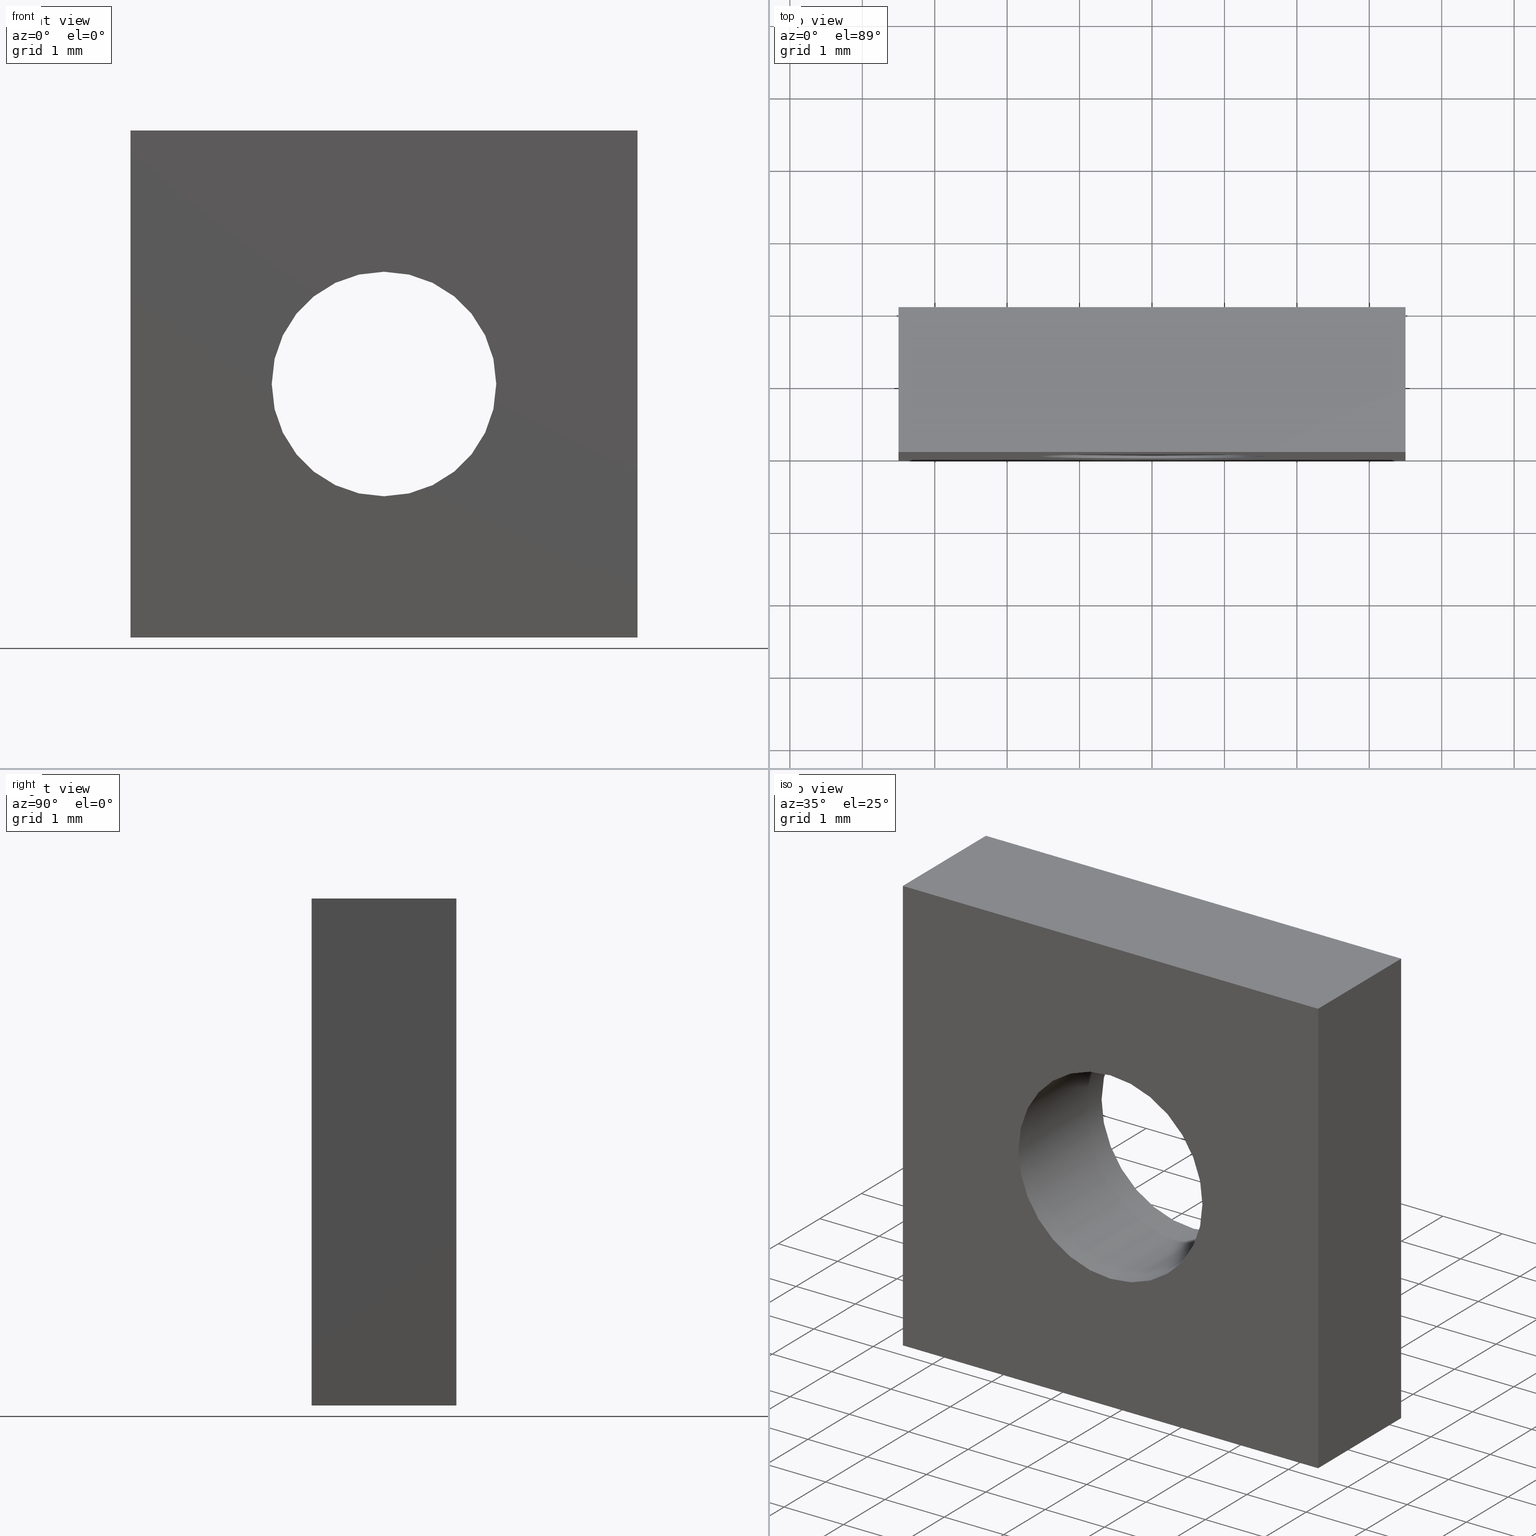
[diagram: canonical four-view strip — front | top / right | iso, engineering-drawing reading convention]
A machine part, canonical four-view strip (front | top / right | iso — engineering-drawing reading convention). The complete STEP part file that produces these views, byte-faithful:
ISO-10303-21;
HEADER;
FILE_DESCRIPTION (( 'STEP AP214' ),
    '1' );
FILE_NAME ('CTN009263.STEP',
    '2016-07-15T02:11:23',
    ( '' ),
    ( '' ),
    'SwSTEP 2.0',
    'SolidWorks 2016',
    '' );
FILE_SCHEMA (( 'AUTOMOTIVE_DESIGN' ));
ENDSEC;

DATA;
#1 = STYLED_ITEM ( 'NONE', ( #291 ), #466 ) ;
#2 = CARTESIAN_POINT ( 'NONE',  ( -3.499999999999999600, 2.000000000000000000, -3.500000000000000000 ) ) ;
#3 = STYLED_ITEM ( 'NONE', ( #206 ), #300 ) ;
#4 = FILL_AREA_STYLE_COLOUR ( '', #452 ) ;
#5 =( NAMED_UNIT ( * ) SI_UNIT ( $, .STERADIAN. ) SOLID_ANGLE_UNIT ( ) );
#6 = EDGE_CURVE ( 'NONE', #362, #265, #137, .T. ) ;
#7 = VECTOR ( 'NONE', #401, 1000.000000000000000 ) ;
#8 = SURFACE_STYLE_FILL_AREA ( #145 ) ;
#9 = VECTOR ( 'NONE', #182, 1000.000000000000000 ) ;
#10 = EDGE_CURVE ( 'NONE', #265, #474, #270, .T. ) ;
#11 = PRESENTATION_LAYER_ASSIGNMENT (  '', '', ( #494 ) ) ;
#12 = ORIENTED_EDGE ( 'NONE', *, *, #160, .F. ) ;
#13 = ORIENTED_EDGE ( 'NONE', *, *, #296, .T. ) ;
#14 = ORIENTED_EDGE ( 'NONE', *, *, #6, .T. ) ;
#15 =( LENGTH_UNIT ( ) NAMED_UNIT ( * ) SI_UNIT ( .MILLI., .METRE. ) );
#16 = VECTOR ( 'NONE', #155, 1000.000000000000000 ) ;
#17 = FILL_AREA_STYLE ('',( #523 ) ) ;
#18 = VECTOR ( 'NONE', #348, 1000.000000000000000 ) ;
#19 =( LENGTH_UNIT ( ) NAMED_UNIT ( * ) SI_UNIT ( .MILLI., .METRE. ) );
#20 = AXIS2_PLACEMENT_3D ( 'NONE', #238, #317, #280 ) ;
#21 = VECTOR ( 'NONE', #46, 1000.000000000000000 ) ;
#22 = COLOUR_RGB ( '',1.000000000000000000, 1.000000000000000000, 0.7529411764705882200 ) ;
#23 = CARTESIAN_POINT ( 'NONE',  ( 3.499999999999999600, 1.500000000000001600, -2.350000000000002300 ) ) ;
#24 = VERTEX_POINT ( 'NONE', #23 ) ;
#25 = AXIS2_PLACEMENT_3D ( 'NONE', #481, #233, #26 ) ;
#26 = DIRECTION ( 'NONE',  ( 1.000000000000000000, 0.0000000000000000000, -0.0000000000000000000 ) ) ;
#27 = VERTEX_POINT ( 'NONE', #140 ) ;
#28 = DIRECTION ( 'NONE',  ( 0.0000000000000000000, -0.0000000000000000000, 1.000000000000000000 ) ) ;
#29 = DIRECTION ( 'NONE',  ( -1.000000000000000000, 0.0000000000000000000, 6.195440985631455300E-017 ) ) ;
#30 = EDGE_CURVE ( 'NONE', #525, #68, #82, .T. ) ;
#31 =( NAMED_UNIT ( * ) PLANE_ANGLE_UNIT ( ) SI_UNIT ( $, .RADIAN. ) );
#32 = CARTESIAN_POINT ( 'NONE',  ( 3.499999999999999600, 1.500000000000001600, -2.650000000000002100 ) ) ;
#33 =( LENGTH_UNIT ( ) NAMED_UNIT ( * ) SI_UNIT ( .MILLI., .METRE. ) );
#34 = VERTEX_POINT ( 'NONE', #429 ) ;
#35 = FILL_AREA_STYLE_COLOUR ( '', #282 ) ;
#36 = LINE ( 'NONE', #408, #16 ) ;
#37 = CARTESIAN_POINT ( 'NONE',  ( -3.499999999999999100, 2.000000000000000000, 3.500000000000000900 ) ) ;
#38 = UNCERTAINTY_MEASURE_WITH_UNIT (LENGTH_MEASURE( 1.000000000000000100E-005 ), #305, 'distance_accuracy_value', 'NONE');
#39 = CIRCLE ( 'NONE', #369, 1.550000000000000000 ) ;
#40 = PRESENTATION_STYLE_ASSIGNMENT (( #398 ) ) ;
#41 = ORIENTED_EDGE ( 'NONE', *, *, #181, .F. ) ;
#42 = PLANE ( 'NONE',  #367 ) ;
#43 = ORIENTED_EDGE ( 'NONE', *, *, #409, .F. ) ;
#44 = ORIENTED_EDGE ( 'NONE', *, *, #188, .F. ) ;
#45 = MECHANICAL_DESIGN_GEOMETRIC_PRESENTATION_REPRESENTATION (  '', ( #494 ), #67 ) ;
#46 = DIRECTION ( 'NONE',  ( -0.0000000000000000000, 1.000000000000000000, -0.0000000000000000000 ) ) ;
#47 = SURFACE_STYLE_FILL_AREA ( #186 ) ;
#48 = VERTEX_POINT ( 'NONE', #258 ) ;
#49 = LINE ( 'NONE', #61, #18 ) ;
#50 = PRESENTATION_LAYER_ASSIGNMENT (  '', '', ( #1 ) ) ;
#51 = ORIENTED_EDGE ( 'NONE', *, *, #176, .T. ) ;
#52 = CLOSED_SHELL ( 'NONE', ( #466, #59, #333, #134, #87, #253, #419, #300, #500 ) ) ;
#53 = PRESENTATION_LAYER_ASSIGNMENT (  '', '', ( #3 ) ) ;
#54 = ORIENTED_EDGE ( 'NONE', *, *, #463, .F. ) ;
#55 = VECTOR ( 'NONE', #426, 1000.000000000000000 ) ;
#56 = FACE_OUTER_BOUND ( 'NONE', #208, .T. ) ;
#57 = EDGE_CURVE ( 'NONE', #68, #129, #310, .T. ) ;
#58 = EDGE_CURVE ( 'NONE', #402, #525, #380, .T. ) ;
#59 = ADVANCED_FACE ( 'NONE', ( #152 ), #276, .F. ) ;
#60 = ORIENTED_EDGE ( 'NONE', *, *, #10, .T. ) ;
#61 = CARTESIAN_POINT ( 'NONE',  ( 3.499999999999999600, 0.8500000000000015300, -2.650000000000002100 ) ) ;
#62 = VERTEX_POINT ( 'NONE', #32 ) ;
#63 = DIRECTION ( 'NONE',  ( 0.0000000000000000000, 1.000000000000000000, -0.0000000000000000000 ) ) ;
#64 = CARTESIAN_POINT ( 'NONE',  ( 0.0000000000000000000, 0.0000000000000000000, 0.0000000000000000000 ) ) ;
#65 =( NAMED_UNIT ( * ) SI_UNIT ( $, .STERADIAN. ) SOLID_ANGLE_UNIT ( ) );
#66 = CARTESIAN_POINT ( 'NONE',  ( 3.500000000000000000, 0.0000000000000000000, 3.500000000000000000 ) ) ;
#67 =( GEOMETRIC_REPRESENTATION_CONTEXT ( 3 ) GLOBAL_UNCERTAINTY_ASSIGNED_CONTEXT ( ( #214 ) ) GLOBAL_UNIT_ASSIGNED_CONTEXT ( ( #19, #218, #517 ) ) REPRESENTATION_CONTEXT ( 'NONE', 'WORKASPACE' ) );
#68 = VERTEX_POINT ( 'NONE', #483 ) ;
#69 =( NAMED_UNIT ( * ) PLANE_ANGLE_UNIT ( ) SI_UNIT ( $, .RADIAN. ) );
#70 = CARTESIAN_POINT ( 'NONE',  ( 3.499999999999999600, 0.8500000000000015300, -2.350000000000000500 ) ) ;
#71 = VECTOR ( 'NONE', #407, 1000.000000000000000 ) ;
#72 = SURFACE_SIDE_STYLE ('',( #272 ) ) ;
#73 = DIRECTION ( 'NONE',  ( -1.000000000000000000, 0.0000000000000000000, 1.239088197126291300E-016 ) ) ;
#74 = ORIENTED_EDGE ( 'NONE', *, *, #188, .T. ) ;
#75 = FACE_OUTER_BOUND ( 'NONE', #250, .T. ) ;
#76 = DIRECTION ( 'NONE',  ( -0.0000000000000000000, 1.000000000000000000, -0.0000000000000000000 ) ) ;
#77 = PRESENTATION_LAYER_ASSIGNMENT (  '', '', ( #499 ) ) ;
#78 = CARTESIAN_POINT ( 'NONE',  ( 3.499999999999999600, 1.150000000000001500, -2.650000000000002100 ) ) ;
#79 = VECTOR ( 'NONE', #180, 1000.000000000000000 ) ;
#80 = DIRECTION ( 'NONE',  ( 6.195440985631455300E-017, -0.0000000000000000000, 1.000000000000000000 ) ) ;
#81 = MECHANICAL_DESIGN_GEOMETRIC_PRESENTATION_REPRESENTATION (  '', ( #3 ), #98 ) ;
#82 = LINE ( 'NONE', #422, #319 ) ;
#83 = ORIENTED_EDGE ( 'NONE', *, *, #463, .T. ) ;
#84 = ORIENTED_EDGE ( 'NONE', *, *, #163, .T. ) ;
#85 = ORIENTED_EDGE ( 'NONE', *, *, #181, .T. ) ;
#86 = COLOUR_RGB ( '',1.000000000000000000, 0.5019607843137254800, 0.5019607843137254800 ) ;
#87 = ADVANCED_FACE ( 'NONE', ( #216, #115 ), #394, .F. ) ;
#88 = ORIENTED_EDGE ( 'NONE', *, *, #6, .F. ) ;
#89 = VERTEX_POINT ( 'NONE', #359 ) ;
#90 = PRODUCT_DEFINITION_SHAPE ( 'NONE', 'NONE',  #241 ) ;
#91 = SURFACE_STYLE_USAGE ( .BOTH. , #508 ) ;
#92 = MECHANICAL_DESIGN_GEOMETRIC_PRESENTATION_REPRESENTATION (  '', ( #499 ), #126 ) ;
#93 = FILL_AREA_STYLE_COLOUR ( '', #301 ) ;
#94 = FACE_BOUND ( 'NONE', #482, .T. ) ;
#95 =( NAMED_UNIT ( * ) PLANE_ANGLE_UNIT ( ) SI_UNIT ( $, .RADIAN. ) );
#96 = CARTESIAN_POINT ( 'NONE',  ( 3.499999999999999600, 1.150000000000001500, -2.000000000000000000 ) ) ;
#97 = CARTESIAN_POINT ( 'NONE',  ( 0.0000000000000000000, 2.000000000000000000, 0.0000000000000000000 ) ) ;
#98 =( GEOMETRIC_REPRESENTATION_CONTEXT ( 3 ) GLOBAL_UNCERTAINTY_ASSIGNED_CONTEXT ( ( #469 ) ) GLOBAL_UNIT_ASSIGNED_CONTEXT ( ( #100, #31, #440 ) ) REPRESENTATION_CONTEXT ( 'NONE', 'WORKASPACE' ) );
#99 = EDGE_CURVE ( 'NONE', #377, #458, #503, .T. ) ;
#100 =( LENGTH_UNIT ( ) NAMED_UNIT ( * ) SI_UNIT ( .MILLI., .METRE. ) );
#101 = SURFACE_STYLE_USAGE ( .BOTH. , #356 ) ;
#102 = MECHANICAL_DESIGN_GEOMETRIC_PRESENTATION_REPRESENTATION (  '', ( #1 ), #133 ) ;
#103 = CARTESIAN_POINT ( 'NONE',  ( -3.499999999999999600, 2.000000000000000000, -3.500000000000000000 ) ) ;
#104 =( LENGTH_UNIT ( ) NAMED_UNIT ( * ) SI_UNIT ( .MILLI., .METRE. ) );
#105 = EDGE_CURVE ( 'NONE', #525, #265, #390, .T. ) ;
#106 = DIRECTION ( 'NONE',  ( -0.0000000000000000000, 1.000000000000000000, 0.0000000000000000000 ) ) ;
#107 = CARTESIAN_POINT ( 'NONE',  ( -3.499999999999999600, 2.000000000000000000, -3.500000000000000000 ) ) ;
#108 = CARTESIAN_POINT ( 'NONE',  ( 3.500000000000000000, 2.000000000000000000, 3.500000000000000000 ) ) ;
#109 = CARTESIAN_POINT ( 'NONE',  ( -3.499999999999999600, 2.000000000000000000, -3.500000000000000000 ) ) ;
#110 = DIRECTION ( 'NONE',  ( -0.0000000000000000000, 1.000000000000000000, 0.0000000000000000000 ) ) ;
#111 = ORIENTED_EDGE ( 'NONE', *, *, #430, .F. ) ;
#112 = ORIENTED_EDGE ( 'NONE', *, *, #269, .T. ) ;
#113 = CARTESIAN_POINT ( 'NONE',  ( 0.0000000000000000000, -7.999900000000001100, 0.0000000000000000000 ) ) ;
#114 = LINE ( 'NONE', #109, #321 ) ;
#115 = FACE_OUTER_BOUND ( 'NONE', #266, .T. ) ;
#116 = DIRECTION ( 'NONE',  ( -3.838348900644204700E-031, -1.000000000000000000, -6.195440985631453300E-015 ) ) ;
#117 =( NAMED_UNIT ( * ) PLANE_ANGLE_UNIT ( ) SI_UNIT ( $, .RADIAN. ) );
#118 = FACE_OUTER_BOUND ( 'NONE', #328, .T. ) ;
#119 = ORIENTED_EDGE ( 'NONE', *, *, #330, .T. ) ;
#120 = STYLED_ITEM ( 'NONE', ( #192 ), #134 ) ;
#121 = CARTESIAN_POINT ( 'NONE',  ( 1.898202538678397500E-016, 0.0000000000000000000, -1.550000000000000000 ) ) ;
#122 = PRESENTATION_STYLE_ASSIGNMENT (( #299 ) ) ;
#123 = VERTEX_POINT ( 'NONE', #438 ) ;
#124 = UNCERTAINTY_MEASURE_WITH_UNIT (LENGTH_MEASURE( 1.000000000000000100E-005 ), #220, 'distance_accuracy_value', 'NONE');
#125 = LINE ( 'NONE', #78, #337 ) ;
#126 =( GEOMETRIC_REPRESENTATION_CONTEXT ( 3 ) GLOBAL_UNCERTAINTY_ASSIGNED_CONTEXT ( ( #528 ) ) GLOBAL_UNIT_ASSIGNED_CONTEXT ( ( #347, #69, #194 ) ) REPRESENTATION_CONTEXT ( 'NONE', 'WORKASPACE' ) );
#127 = FACE_OUTER_BOUND ( 'NONE', #415, .T. ) ;
#128 = CYLINDRICAL_SURFACE ( 'NONE', #210, 1.550000000000000000 ) ;
#129 = VERTEX_POINT ( 'NONE', #479 ) ;
#130 = VERTEX_POINT ( 'NONE', #172 ) ;
#131 = ORIENTED_EDGE ( 'NONE', *, *, #105, .F. ) ;
#132 = EDGE_CURVE ( 'NONE', #458, #203, #286, .T. ) ;
#133 =( GEOMETRIC_REPRESENTATION_CONTEXT ( 3 ) GLOBAL_UNCERTAINTY_ASSIGNED_CONTEXT ( ( #254 ) ) GLOBAL_UNIT_ASSIGNED_CONTEXT ( ( #495, #287, #5 ) ) REPRESENTATION_CONTEXT ( 'NONE', 'WORKASPACE' ) );
#134 = ADVANCED_FACE ( 'NONE', ( #396 ), #392, .F. ) ;
#135 = ORIENTED_EDGE ( 'NONE', *, *, #212, .T. ) ;
#136 = FILL_AREA_STYLE ('',( #4 ) ) ;
#137 = LINE ( 'NONE', #178, #364 ) ;
#138 = CARTESIAN_POINT ( 'NONE',  ( 3.499999999999999600, 1.150000000000001500, -2.000000000000000000 ) ) ;
#139 = CIRCLE ( 'NONE', #341, 1.550000000000000000 ) ;
#140 = CARTESIAN_POINT ( 'NONE',  ( 3.499999999999999600, 1.150000000000001500, -2.650000000000002100 ) ) ;
#141 =( NAMED_UNIT ( * ) PLANE_ANGLE_UNIT ( ) SI_UNIT ( $, .RADIAN. ) );
#142 = ORIENTED_EDGE ( 'NONE', *, *, #485, .T. ) ;
#143 = AXIS2_PLACEMENT_3D ( 'NONE', #311, #262, #225 ) ;
#144 = DIRECTION ( 'NONE',  ( -0.0000000000000000000, 1.000000000000000000, 0.0000000000000000000 ) ) ;
#145 = FILL_AREA_STYLE ('',( #184 ) ) ;
#146 = FILL_AREA_STYLE ('',( #179 ) ) ;
#147 = CARTESIAN_POINT ( 'NONE',  ( 3.499999999999999600, 2.000000000000000000, -3.500000000000000000 ) ) ;
#148 = SURFACE_SIDE_STYLE ('',( #47 ) ) ;
#149 = FILL_AREA_STYLE ('',( #151 ) ) ;
#150 = DIRECTION ( 'NONE',  ( 0.0000000000000000000, 0.0000000000000000000, 1.000000000000000000 ) ) ;
#151 = FILL_AREA_STYLE_COLOUR ( '', #204 ) ;
#152 = FACE_OUTER_BOUND ( 'NONE', #386, .T. ) ;
#153 = LINE ( 'NONE', #103, #249 ) ;
#154 = DIRECTION ( 'NONE',  ( -0.0000000000000000000, 1.000000000000000000, 0.0000000000000000000 ) ) ;
#155 = DIRECTION ( 'NONE',  ( 0.0000000000000000000, -1.000000000000000000, 0.0000000000000000000 ) ) ;
#156 = ORIENTED_EDGE ( 'NONE', *, *, #334, .F. ) ;
#157 = ORIENTED_EDGE ( 'NONE', *, *, #99, .F. ) ;
#158 = DIRECTION ( 'NONE',  ( -0.0000000000000000000, 1.000000000000000000, -0.0000000000000000000 ) ) ;
#159 = STYLED_ITEM ( 'NONE', ( #289 ), #333 ) ;
#160 = EDGE_CURVE ( 'NONE', #24, #260, #375, .T. ) ;
#161 = PRESENTATION_LAYER_ASSIGNMENT (  '', '', ( #185 ) ) ;
#162 = COLOUR_RGB ( '',1.000000000000000000, 1.000000000000000000, 0.7529411764705882200 ) ;
#163 = EDGE_CURVE ( 'NONE', #123, #177, #257, .T. ) ;
#164 = ORIENTED_EDGE ( 'NONE', *, *, #245, .T. ) ;
#165 = ORIENTED_EDGE ( 'NONE', *, *, #353, .T. ) ;
#166 = VECTOR ( 'NONE', #519, 1000.000000000000000 ) ;
#167 = PRESENTATION_LAYER_ASSIGNMENT (  '', '', ( #120 ) ) ;
#168 = LINE ( 'NONE', #354, #395 ) ;
#169 = ORIENTED_EDGE ( 'NONE', *, *, #160, .T. ) ;
#170 = ORIENTED_EDGE ( 'NONE', *, *, #409, .T. ) ;
#171 = SURFACE_STYLE_FILL_AREA ( #457 ) ;
#172 = CARTESIAN_POINT ( 'NONE',  ( 0.0000000000000000000, 0.0000000000000000000, 1.550000000000000000 ) ) ;
#173 = DIRECTION ( 'NONE',  ( -0.0000000000000000000, -1.000000000000000000, -0.0000000000000000000 ) ) ;
#174 = ORIENTED_EDGE ( 'NONE', *, *, #412, .T. ) ;
#175 = UNCERTAINTY_MEASURE_WITH_UNIT (LENGTH_MEASURE( 1.000000000000000100E-005 ), #15, 'distance_accuracy_value', 'NONE');
#176 = EDGE_CURVE ( 'NONE', #129, #48, #153, .T. ) ;
#177 = VERTEX_POINT ( 'NONE', #520 ) ;
#178 = CARTESIAN_POINT ( 'NONE',  ( -3.499999999999999100, 0.0000000000000000000, 3.500000000000000900 ) ) ;
#179 = FILL_AREA_STYLE_COLOUR ( '', #344 ) ;
#180 = DIRECTION ( 'NONE',  ( -0.0000000000000000000, -1.000000000000000000, -0.0000000000000000000 ) ) ;
#181 = EDGE_CURVE ( 'NONE', #89, #34, #366, .T. ) ;
#182 = DIRECTION ( 'NONE',  ( 6.195440985631455300E-017, -0.0000000000000000000, 1.000000000000000000 ) ) ;
#183 = PRESENTATION_STYLE_ASSIGNMENT (( #371 ) ) ;
#184 = FILL_AREA_STYLE_COLOUR ( '', #425 ) ;
#185 = STYLED_ITEM ( 'NONE', ( #40 ), #500 ) ;
#186 = FILL_AREA_STYLE ('',( #230 ) ) ;
#187 = PLANE ( 'NONE',  #20 ) ;
#188 = EDGE_CURVE ( 'NONE', #488, #130, #139, .T. ) ;
#189 = FILL_AREA_STYLE ('',( #514 ) ) ;
#190 =( NAMED_UNIT ( * ) SI_UNIT ( $, .STERADIAN. ) SOLID_ANGLE_UNIT ( ) );
#191 = FILL_AREA_STYLE ('',( #487 ) ) ;
#192 = PRESENTATION_STYLE_ASSIGNMENT (( #511 ) ) ;
#193 = ORIENTED_EDGE ( 'NONE', *, *, #30, .F. ) ;
#194 =( NAMED_UNIT ( * ) SI_UNIT ( $, .STERADIAN. ) SOLID_ANGLE_UNIT ( ) );
#195 = CARTESIAN_POINT ( 'NONE',  ( 0.0000000000000000000, -7.999900000000001100, 1.550000000000000000 ) ) ;
#196 = ORIENTED_EDGE ( 'NONE', *, *, #176, .F. ) ;
#197 = EDGE_LOOP ( 'NONE', ( #14, #131, #303, #345 ) ) ;
#198 = AXIS2_PLACEMENT_3D ( 'NONE', #393, #110, #28 ) ;
#199 = DIRECTION ( 'NONE',  ( -6.195440985631454100E-017, 0.0000000000000000000, -1.000000000000000000 ) ) ;
#200 = CARTESIAN_POINT ( 'NONE',  ( 0.0000000000000000000, -7.999900000000001100, 0.0000000000000000000 ) ) ;
#201 = MECHANICAL_DESIGN_GEOMETRIC_PRESENTATION_REPRESENTATION (  '', ( #120 ), #226 ) ;
#202 = DIRECTION ( 'NONE',  ( 0.0000000000000000000, 0.0000000000000000000, 1.000000000000000000 ) ) ;
#203 = VERTEX_POINT ( 'NONE', #363 ) ;
#204 = COLOUR_RGB ( '',1.000000000000000000, 1.000000000000000000, 0.7529411764705882200 ) ;
#205 = AXIS2_PLACEMENT_3D ( 'NONE', #64, #512, #400 ) ;
#206 = PRESENTATION_STYLE_ASSIGNMENT (( #91 ) ) ;
#207 = VECTOR ( 'NONE', #484, 1000.000000000000000 ) ;
#208 = EDGE_LOOP ( 'NONE', ( #459, #111, #329, #51 ) ) ;
#209 = EDGE_CURVE ( 'NONE', #68, #474, #350, .T. ) ;
#210 = AXIS2_PLACEMENT_3D ( 'NONE', #113, #76, #202 ) ;
#211 = DIRECTION ( 'NONE',  ( 0.0000000000000000000, 0.0000000000000000000, 1.000000000000000000 ) ) ;
#212 = EDGE_CURVE ( 'NONE', #34, #89, #39, .T. ) ;
#213 = ORIENTED_EDGE ( 'NONE', *, *, #302, .F. ) ;
#214 = UNCERTAINTY_MEASURE_WITH_UNIT (LENGTH_MEASURE( 1.000000000000000100E-005 ), #19, 'distance_accuracy_value', 'NONE');
#215 = LINE ( 'NONE', #491, #7 ) ;
#216 = FACE_BOUND ( 'NONE', #476, .T. ) ;
#217 = PRESENTATION_LAYER_ASSIGNMENT (  '', '', ( #159 ) ) ;
#218 =( NAMED_UNIT ( * ) PLANE_ANGLE_UNIT ( ) SI_UNIT ( $, .RADIAN. ) );
#219 =( NAMED_UNIT ( * ) PLANE_ANGLE_UNIT ( ) SI_UNIT ( $, .RADIAN. ) );
#220 =( LENGTH_UNIT ( ) NAMED_UNIT ( * ) SI_UNIT ( .MILLI., .METRE. ) );
#221 = LINE ( 'NONE', #309, #453 ) ;
#222 = SURFACE_SIDE_STYLE ('',( #516 ) ) ;
#223 = VERTEX_POINT ( 'NONE', #138 ) ;
#224 = ORIENTED_EDGE ( 'NONE', *, *, #132, .T. ) ;
#225 = DIRECTION ( 'NONE',  ( 6.195440985631455300E-017, 0.0000000000000000000, 1.000000000000000000 ) ) ;
#226 =( GEOMETRIC_REPRESENTATION_CONTEXT ( 3 ) GLOBAL_UNCERTAINTY_ASSIGNED_CONTEXT ( ( #124 ) ) GLOBAL_UNIT_ASSIGNED_CONTEXT ( ( #220, #259, #65 ) ) REPRESENTATION_CONTEXT ( 'NONE', 'WORKASPACE' ) );
#227 = CARTESIAN_POINT ( 'NONE',  ( 0.0000000000000000000, 0.0000000000000000000, 0.0000000000000000000 ) ) ;
#228 = DIRECTION ( 'NONE',  ( 6.195440985631455300E-017, 0.0000000000000000000, 1.000000000000000000 ) ) ;
#229 = DIRECTION ( 'NONE',  ( -0.0000000000000000000, 1.000000000000000000, -0.0000000000000000000 ) ) ;
#230 = FILL_AREA_STYLE_COLOUR ( '', #255 ) ;
#231 = APPLICATION_CONTEXT ( 'automotive_design' ) ;
#232 = DIRECTION ( 'NONE',  ( 6.195440985631452900E-017, 0.0000000000000000000, 1.000000000000000000 ) ) ;
#233 = DIRECTION ( 'NONE',  ( 0.0000000000000000000, 0.0000000000000000000, 1.000000000000000000 ) ) ;
#234 = SURFACE_STYLE_FILL_AREA ( #146 ) ;
#235 =( LENGTH_UNIT ( ) NAMED_UNIT ( * ) SI_UNIT ( .MILLI., .METRE. ) );
#236 = ORIENTED_EDGE ( 'NONE', *, *, #245, .F. ) ;
#237 = DIRECTION ( 'NONE',  ( 0.0000000000000000000, 0.0000000000000000000, 1.000000000000000000 ) ) ;
#238 = CARTESIAN_POINT ( 'NONE',  ( 0.0000000000000000000, 2.000000000000000000, 0.0000000000000000000 ) ) ;
#239 = LINE ( 'NONE', #451, #460 ) ;
#240 = VECTOR ( 'NONE', #173, 1000.000000000000000 ) ;
#241 = PRODUCT_DEFINITION ( 'UNKNOWN', '', #261, #336 ) ;
#242 = UNCERTAINTY_MEASURE_WITH_UNIT (LENGTH_MEASURE( 1.000000000000000100E-005 ), #327, 'distance_accuracy_value', 'NONE');
#243 = LINE ( 'NONE', #195, #21 ) ;
#244 = SURFACE_SIDE_STYLE ('',( #171 ) ) ;
#245 = EDGE_CURVE ( 'NONE', #203, #123, #49, .T. ) ;
#246 = CARTESIAN_POINT ( 'NONE',  ( -3.499999999999999100, 2.000000000000000000, 3.500000000000000900 ) ) ;
#247 = MECHANICAL_DESIGN_GEOMETRIC_PRESENTATION_REPRESENTATION (  '', ( #185 ), #274 ) ;
#248 = MECHANICAL_DESIGN_GEOMETRIC_PRESENTATION_REPRESENTATION (  '', ( #159 ), #284 ) ;
#249 = VECTOR ( 'NONE', #358, 1000.000000000000000 ) ;
#250 = EDGE_LOOP ( 'NONE', ( #44, #306, #135, #437 ) ) ;
#251 = ORIENTED_EDGE ( 'NONE', *, *, #30, .T. ) ;
#252 = ORIENTED_EDGE ( 'NONE', *, *, #58, .T. ) ;
#253 = ADVANCED_FACE ( 'NONE', ( #127 ), #471, .F. ) ;
#254 = UNCERTAINTY_MEASURE_WITH_UNIT (LENGTH_MEASURE( 1.000000000000000100E-005 ), #495, 'distance_accuracy_value', 'NONE');
#255 = COLOUR_RGB ( '',1.000000000000000000, 1.000000000000000000, 1.000000000000000000 ) ;
#256 = DIRECTION ( 'NONE',  ( 1.000000000000000000, 0.0000000000000000000, -1.239088197126291100E-016 ) ) ;
#257 = LINE ( 'NONE', #264, #470 ) ;
#258 = CARTESIAN_POINT ( 'NONE',  ( -3.499999999999999600, 0.0000000000000000000, -3.500000000000000000 ) ) ;
#259 =( NAMED_UNIT ( * ) PLANE_ANGLE_UNIT ( ) SI_UNIT ( $, .RADIAN. ) );
#260 = VERTEX_POINT ( 'NONE', #385 ) ;
#261 = PRODUCT_DEFINITION_FORMATION_WITH_SPECIFIED_SOURCE ( 'ANY', '', #515, .NOT_KNOWN. ) ;
#262 = DIRECTION ( 'NONE',  ( -1.000000000000000000, 0.0000000000000000000, 6.195440985631455300E-017 ) ) ;
#263 = APPLICATION_PROTOCOL_DEFINITION ( 'draft international standard', 'automotive_design', 1998, #231 ) ;
#264 = CARTESIAN_POINT ( 'NONE',  ( 3.499999999999999600, 1.150000000000001500, -3.000000000000000000 ) ) ;
#265 = VERTEX_POINT ( 'NONE', #66 ) ;
#266 = EDGE_LOOP ( 'NONE', ( #60, #355, #193, #297 ) ) ;
#267 = SURFACE_SIDE_STYLE ('',( #524 ) ) ;
#268 = DIRECTION ( 'NONE',  ( -0.0000000000000000000, 1.000000000000000000, 0.0000000000000000000 ) ) ;
#269 = EDGE_CURVE ( 'NONE', #260, #223, #342, .T. ) ;
#270 = LINE ( 'NONE', #384, #55 ) ;
#271 = CARTESIAN_POINT ( 'NONE',  ( 3.499999999999999600, 2.000000000000000000, -3.500000000000000000 ) ) ;
#272 = SURFACE_STYLE_FILL_AREA ( #191 ) ;
#273 = SURFACE_SIDE_STYLE ('',( #234 ) ) ;
#274 =( GEOMETRIC_REPRESENTATION_CONTEXT ( 3 ) GLOBAL_UNCERTAINTY_ASSIGNED_CONTEXT ( ( #175 ) ) GLOBAL_UNIT_ASSIGNED_CONTEXT ( ( #15, #219, #455 ) ) REPRESENTATION_CONTEXT ( 'NONE', 'WORKASPACE' ) );
#275 = DIRECTION ( 'NONE',  ( 0.0000000000000000000, 0.0000000000000000000, 1.000000000000000000 ) ) ;
#276 = PLANE ( 'NONE',  #513 ) ;
#277 =( NAMED_UNIT ( * ) SI_UNIT ( $, .STERADIAN. ) SOLID_ANGLE_UNIT ( ) );
#278 = CARTESIAN_POINT ( 'NONE',  ( 3.499999999999999600, 0.8500000000000015300, -2.000000000000000000 ) ) ;
#279 = DIRECTION ( 'NONE',  ( -0.0000000000000000000, -1.000000000000000000, -0.0000000000000000000 ) ) ;
#280 = DIRECTION ( 'NONE',  ( 0.0000000000000000000, -0.0000000000000000000, 1.000000000000000000 ) ) ;
#281 = VERTEX_POINT ( 'NONE', #278 ) ;
#282 = COLOUR_RGB ( '',1.000000000000000000, 1.000000000000000000, 0.7529411764705882200 ) ;
#283 = UNCERTAINTY_MEASURE_WITH_UNIT (LENGTH_MEASURE( 1.000000000000000100E-005 ), #33, 'distance_accuracy_value', 'NONE');
#284 =( GEOMETRIC_REPRESENTATION_CONTEXT ( 3 ) GLOBAL_UNCERTAINTY_ASSIGNED_CONTEXT ( ( #376 ) ) GLOBAL_UNIT_ASSIGNED_CONTEXT ( ( #410, #117, #325 ) ) REPRESENTATION_CONTEXT ( 'NONE', 'WORKASPACE' ) );
#285 = CARTESIAN_POINT ( 'NONE',  ( -3.499999999999999100, 0.0000000000000000000, 3.500000000000000900 ) ) ;
#286 = LINE ( 'NONE', #349, #414 ) ;
#287 =( NAMED_UNIT ( * ) PLANE_ANGLE_UNIT ( ) SI_UNIT ( $, .RADIAN. ) );
#288 = AXIS2_PLACEMENT_3D ( 'NONE', #478, #106, #150 ) ;
#289 = PRESENTATION_STYLE_ASSIGNMENT (( #372 ) ) ;
#290 = ORIENTED_EDGE ( 'NONE', *, *, #330, .F. ) ;
#291 = PRESENTATION_STYLE_ASSIGNMENT (( #373 ) ) ;
#292 = EDGE_LOOP ( 'NONE', ( #174, #252, #251, #374 ) ) ;
#293 = ORIENTED_EDGE ( 'NONE', *, *, #353, .F. ) ;
#294 = PRODUCT_RELATED_PRODUCT_CATEGORY ( 'part', '', ( #515 ) ) ;
#295 = CYLINDRICAL_SURFACE ( 'NONE', #360, 1.550000000000000000 ) ;
#296 = EDGE_CURVE ( 'NONE', #474, #48, #221, .T. ) ;
#297 = ORIENTED_EDGE ( 'NONE', *, *, #105, .T. ) ;
#298 = STYLED_ITEM ( 'NONE', ( #183 ), #505 ) ;
#299 = SURFACE_STYLE_USAGE ( .BOTH. , #273 ) ;
#300 = ADVANCED_FACE ( 'NONE', ( #432, #118 ), #399, .F. ) ;
#301 = COLOUR_RGB ( '',1.000000000000000000, 1.000000000000000000, 1.000000000000000000 ) ;
#302 = EDGE_CURVE ( 'NONE', #488, #34, #168, .T. ) ;
#303 = ORIENTED_EDGE ( 'NONE', *, *, #58, .F. ) ;
#304 = PRODUCT_CONTEXT ( 'NONE', #231, 'mechanical' ) ;
#305 =( LENGTH_UNIT ( ) NAMED_UNIT ( * ) SI_UNIT ( .MILLI., .METRE. ) );
#306 = ORIENTED_EDGE ( 'NONE', *, *, #302, .T. ) ;
#307 = SURFACE_SIDE_STYLE ('',( #461 ) ) ;
#308 = AXIS2_PLACEMENT_3D ( 'NONE', #351, #423, #73 ) ;
#309 = CARTESIAN_POINT ( 'NONE',  ( -3.499999999999999600, 0.0000000000000000000, -3.500000000000000000 ) ) ;
#310 = LINE ( 'NONE', #107, #418 ) ;
#311 = CARTESIAN_POINT ( 'NONE',  ( 3.499999999999999600, 2.000000000000000000, -3.500000000000000000 ) ) ;
#312 = FILL_AREA_STYLE_COLOUR ( '', #86 ) ;
#313 =( NAMED_UNIT ( * ) SI_UNIT ( $, .STERADIAN. ) SOLID_ANGLE_UNIT ( ) );
#314 = DIRECTION ( 'NONE',  ( -1.000000000000000000, -0.0000000000000000000, -0.0000000000000000000 ) ) ;
#315 = CARTESIAN_POINT ( 'NONE',  ( 3.499999999999999600, 0.8500000000000015300, -2.000000000000000000 ) ) ;
#316 = ORIENTED_EDGE ( 'NONE', *, *, #357, .F. ) ;
#317 = DIRECTION ( 'NONE',  ( -0.0000000000000000000, 1.000000000000000000, 0.0000000000000000000 ) ) ;
#318 = VERTEX_POINT ( 'NONE', #70 ) ;
#319 = VECTOR ( 'NONE', #468, 1000.000000000000000 ) ;
#320 = UNCERTAINTY_MEASURE_WITH_UNIT (LENGTH_MEASURE( 1.000000000000000100E-005 ), #104, 'distance_accuracy_value', 'NONE');
#321 = VECTOR ( 'NONE', #232, 1000.000000000000000 ) ;
#322 = PRESENTATION_STYLE_ASSIGNMENT (( #101 ) ) ;
#323 = APPLICATION_PROTOCOL_DEFINITION ( 'draft international standard', 'automotive_design', 1998, #406 ) ;
#324 = DIRECTION ( 'NONE',  ( -6.195440985631455300E-017, 0.0000000000000000000, -1.000000000000000000 ) ) ;
#325 =( NAMED_UNIT ( * ) SI_UNIT ( $, .STERADIAN. ) SOLID_ANGLE_UNIT ( ) );
#326 = SURFACE_STYLE_FILL_AREA ( #189 ) ;
#327 =( LENGTH_UNIT ( ) NAMED_UNIT ( * ) SI_UNIT ( .MILLI., .METRE. ) );
#328 = EDGE_LOOP ( 'NONE', ( #456, #343, #507, #88 ) ) ;
#329 = ORIENTED_EDGE ( 'NONE', *, *, #412, .F. ) ;
#330 = EDGE_CURVE ( 'NONE', #27, #62, #497, .T. ) ;
#331 =( GEOMETRIC_REPRESENTATION_CONTEXT ( 3 ) GLOBAL_UNCERTAINTY_ASSIGNED_CONTEXT ( ( #242 ) ) GLOBAL_UNIT_ASSIGNED_CONTEXT ( ( #327, #95, #190 ) ) REPRESENTATION_CONTEXT ( 'NONE', 'WORKASPACE' ) );
#332 = EDGE_CURVE ( 'NONE', #48, #362, #504, .T. ) ;
#333 = ADVANCED_FACE ( 'NONE', ( #56 ), #42, .F. ) ;
#334 = EDGE_CURVE ( 'NONE', #318, #377, #239, .T. ) ;
#335 = ORIENTED_EDGE ( 'NONE', *, *, #209, .T. ) ;
#336 = PRODUCT_DEFINITION_CONTEXT ( 'detailed design', #406, 'design' ) ;
#337 = VECTOR ( 'NONE', #80, 1000.000000000000000 ) ;
#338 = AXIS2_PLACEMENT_3D ( 'NONE', #447, #154, #237 ) ;
#339 = UNCERTAINTY_MEASURE_WITH_UNIT (LENGTH_MEASURE( 1.000000000000000100E-005 ), #235, 'distance_accuracy_value', 'NONE');
#340 = PRESENTATION_STYLE_ASSIGNMENT (( #361 ) ) ;
#341 = AXIS2_PLACEMENT_3D ( 'NONE', #227, #268, #436 ) ;
#342 = LINE ( 'NONE', #96, #9 ) ;
#343 = ORIENTED_EDGE ( 'NONE', *, *, #296, .F. ) ;
#344 = COLOUR_RGB ( '',1.000000000000000000, 0.5019607843137254800, 0.5019607843137254800 ) ;
#345 = ORIENTED_EDGE ( 'NONE', *, *, #430, .T. ) ;
#346 = FACE_OUTER_BOUND ( 'NONE', #292, .T. ) ;
#347 =( LENGTH_UNIT ( ) NAMED_UNIT ( * ) SI_UNIT ( .MILLI., .METRE. ) );
#348 = DIRECTION ( 'NONE',  ( -6.195440985631455300E-017, 0.0000000000000000000, -1.000000000000000000 ) ) ;
#349 = CARTESIAN_POINT ( 'NONE',  ( 3.499999999999999600, 0.8500000000000015300, -2.650000000000002100 ) ) ;
#350 = LINE ( 'NONE', #147, #240 ) ;
#351 = CARTESIAN_POINT ( 'NONE',  ( -3.499999999999999100, 2.000000000000000000, 3.500000000000000900 ) ) ;
#352 = FACE_OUTER_BOUND ( 'NONE', #388, .T. ) ;
#353 = EDGE_CURVE ( 'NONE', #223, #281, #36, .T. ) ;
#354 = CARTESIAN_POINT ( 'NONE',  ( 1.898202538678397500E-016, -7.999900000000001100, -1.550000000000000000 ) ) ;
#355 = ORIENTED_EDGE ( 'NONE', *, *, #209, .F. ) ;
#356 = SURFACE_SIDE_STYLE ('',( #8 ) ) ;
#357 = EDGE_CURVE ( 'NONE', #177, #27, #125, .T. ) ;
#358 = DIRECTION ( 'NONE',  ( -0.0000000000000000000, -1.000000000000000000, -0.0000000000000000000 ) ) ;
#359 = CARTESIAN_POINT ( 'NONE',  ( 0.0000000000000000000, 2.000000000000000000, 1.550000000000000000 ) ) ;
#360 = AXIS2_PLACEMENT_3D ( 'NONE', #200, #158, #211 ) ;
#361 = SURFACE_STYLE_USAGE ( .BOTH. , #307 ) ;
#362 = VERTEX_POINT ( 'NONE', #285 ) ;
#363 = CARTESIAN_POINT ( 'NONE',  ( 3.499999999999999600, 0.8500000000000015300, -2.650000000000002100 ) ) ;
#364 = VECTOR ( 'NONE', #256, 1000.000000000000000 ) ;
#365 = CARTESIAN_POINT ( 'NONE',  ( 3.499999999999999600, 0.5000000000000015500, -2.350000000000002800 ) ) ;
#366 = CIRCLE ( 'NONE', #288, 1.550000000000000000 ) ;
#367 = AXIS2_PLACEMENT_3D ( 'NONE', #2, #493, #199 ) ;
#368 = CARTESIAN_POINT ( 'NONE',  ( -3.499999999999999600, 0.0000000000000000000, -3.500000000000000000 ) ) ;
#369 = AXIS2_PLACEMENT_3D ( 'NONE', #97, #144, #275 ) ;
#370 = ORIENTED_EDGE ( 'NONE', *, *, #212, .F. ) ;
#371 = SURFACE_STYLE_USAGE ( .BOTH. , #222 ) ;
#372 = SURFACE_STYLE_USAGE ( .BOTH. , #72 ) ;
#373 = SURFACE_STYLE_USAGE ( .BOTH. , #244 ) ;
#374 = ORIENTED_EDGE ( 'NONE', *, *, #57, .T. ) ;
#375 = LINE ( 'NONE', #486, #489 ) ;
#376 = UNCERTAINTY_MEASURE_WITH_UNIT (LENGTH_MEASURE( 1.000000000000000100E-005 ), #410, 'distance_accuracy_value', 'NONE');
#377 = VERTEX_POINT ( 'NONE', #365 ) ;
#378 = ORIENTED_EDGE ( 'NONE', *, *, #99, .T. ) ;
#379 = EDGE_CURVE ( 'NONE', #130, #488, #446, .T. ) ;
#380 = LINE ( 'NONE', #521, #207 ) ;
#381 = VECTOR ( 'NONE', #527, 1000.000000000000000 ) ;
#382 = PRESENTATION_LAYER_ASSIGNMENT (  '', '', ( #298 ) ) ;
#383 =( NAMED_UNIT ( * ) PLANE_ANGLE_UNIT ( ) SI_UNIT ( $, .RADIAN. ) );
#384 = CARTESIAN_POINT ( 'NONE',  ( 3.499999999999999600, 0.0000000000000000000, -3.500000000000000000 ) ) ;
#385 = CARTESIAN_POINT ( 'NONE',  ( 3.499999999999999600, 1.150000000000001500, -2.350000000000002300 ) ) ;
#386 = EDGE_LOOP ( 'NONE', ( #492, #378, #224, #164, #84, #433, #119, #170, #169, #112, #165, #83 ) ) ;
#387 = VECTOR ( 'NONE', #324, 1000.000000000000000 ) ;
#388 = EDGE_LOOP ( 'NONE', ( #213, #405, #142, #85 ) ) ;
#389 = STYLED_ITEM ( 'NONE', ( #529 ), #419 ) ;
#390 = LINE ( 'NONE', #509, #79 ) ;
#391 = STYLED_ITEM ( 'NONE', ( #340 ), #253 ) ;
#392 = PLANE ( 'NONE',  #308 ) ;
#393 = CARTESIAN_POINT ( 'NONE',  ( 0.0000000000000000000, 0.0000000000000000000, 0.0000000000000000000 ) ) ;
#394 = PLANE ( 'NONE',  #143 ) ;
#395 = VECTOR ( 'NONE', #229, 1000.000000000000000 ) ;
#396 = FACE_OUTER_BOUND ( 'NONE', #197, .T. ) ;
#397 =( NAMED_UNIT ( * ) PLANE_ANGLE_UNIT ( ) SI_UNIT ( $, .RADIAN. ) );
#398 = SURFACE_STYLE_USAGE ( .BOTH. , #480 ) ;
#399 = PLANE ( 'NONE',  #198 ) ;
#400 = DIRECTION ( 'NONE',  ( 1.000000000000000000, 0.0000000000000000000, 0.0000000000000000000 ) ) ;
#401 = DIRECTION ( 'NONE',  ( 6.195440985631455300E-017, -0.0000000000000000000, 1.000000000000000000 ) ) ;
#402 = VERTEX_POINT ( 'NONE', #246 ) ;
#403 = ORIENTED_EDGE ( 'NONE', *, *, #269, .F. ) ;
#404 = LINE ( 'NONE', #37, #506 ) ;
#405 = ORIENTED_EDGE ( 'NONE', *, *, #379, .F. ) ;
#406 = APPLICATION_CONTEXT ( 'automotive_design' ) ;
#407 = DIRECTION ( 'NONE',  ( 6.195440985631452900E-017, 0.0000000000000000000, 1.000000000000000000 ) ) ;
#408 = CARTESIAN_POINT ( 'NONE',  ( 3.499999999999999600, 1.150000000000001500, -2.000000000000000000 ) ) ;
#409 = EDGE_CURVE ( 'NONE', #62, #24, #215, .T. ) ;
#410 =( LENGTH_UNIT ( ) NAMED_UNIT ( * ) SI_UNIT ( .MILLI., .METRE. ) );
#411 = CARTESIAN_POINT ( 'NONE',  ( 3.499999999999999600, 0.0000000000000000000, -3.500000000000000000 ) ) ;
#412 = EDGE_CURVE ( 'NONE', #129, #402, #114, .T. ) ;
#413 = MECHANICAL_DESIGN_GEOMETRIC_PRESENTATION_REPRESENTATION (  '', ( #298 ), #442 ) ;
#414 = VECTOR ( 'NONE', #63, 1000.000000000000000 ) ;
#415 = EDGE_LOOP ( 'NONE', ( #13, #196, #420, #335 ) ) ;
#416 = PRESENTATION_LAYER_ASSIGNMENT (  '', '', ( #389 ) ) ;
#417 = PRESENTATION_LAYER_ASSIGNMENT (  '', '', ( #391 ) ) ;
#418 = VECTOR ( 'NONE', #314, 1000.000000000000000 ) ;
#419 = ADVANCED_FACE ( 'NONE', ( #94, #346 ), #187, .T. ) ;
#420 = ORIENTED_EDGE ( 'NONE', *, *, #57, .F. ) ;
#421 = ORIENTED_EDGE ( 'NONE', *, *, #163, .F. ) ;
#422 = CARTESIAN_POINT ( 'NONE',  ( 3.499999999999999600, 2.000000000000000000, -3.500000000000000000 ) ) ;
#423 = DIRECTION ( 'NONE',  ( -1.239088197126291300E-016, 0.0000000000000000000, -1.000000000000000000 ) ) ;
#424 = SURFACE_STYLE_FILL_AREA ( #149 ) ;
#425 = COLOUR_RGB ( '',1.000000000000000000, 1.000000000000000000, 0.7529411764705882200 ) ;
#426 = DIRECTION ( 'NONE',  ( -6.195440985631454100E-017, -0.0000000000000000000, -1.000000000000000000 ) ) ;
#427 = ADVANCED_BREP_SHAPE_REPRESENTATION ( 'CTN009263', ( #505, #205 ), #331 ) ;
#428 =( NAMED_UNIT ( * ) SI_UNIT ( $, .STERADIAN. ) SOLID_ANGLE_UNIT ( ) );
#429 = CARTESIAN_POINT ( 'NONE',  ( 1.898202538678397500E-016, 2.000000000000000000, -1.550000000000000000 ) ) ;
#430 = EDGE_CURVE ( 'NONE', #402, #362, #404, .T. ) ;
#431 =( GEOMETRIC_REPRESENTATION_CONTEXT ( 3 ) GLOBAL_UNCERTAINTY_ASSIGNED_CONTEXT ( ( #320 ) ) GLOBAL_UNIT_ASSIGNED_CONTEXT ( ( #104, #397, #313 ) ) REPRESENTATION_CONTEXT ( 'NONE', 'WORKASPACE' ) );
#432 = FACE_BOUND ( 'NONE', #464, .T. ) ;
#433 = ORIENTED_EDGE ( 'NONE', *, *, #357, .T. ) ;
#434 = CARTESIAN_POINT ( 'NONE',  ( 3.499999999999999600, 0.5000000000000015500, -2.350000000000002800 ) ) ;
#435 = ORIENTED_EDGE ( 'NONE', *, *, #379, .T. ) ;
#436 = DIRECTION ( 'NONE',  ( 0.0000000000000000000, 0.0000000000000000000, 1.000000000000000000 ) ) ;
#437 = ORIENTED_EDGE ( 'NONE', *, *, #485, .F. ) ;
#438 = CARTESIAN_POINT ( 'NONE',  ( 3.499999999999999600, 0.8500000000000015300, -3.000000000000000000 ) ) ;
#439 = STYLED_ITEM ( 'NONE', ( #467 ), #59 ) ;
#440 =( NAMED_UNIT ( * ) SI_UNIT ( $, .STERADIAN. ) SOLID_ANGLE_UNIT ( ) );
#441 = SURFACE_STYLE_USAGE ( .BOTH. , #148 ) ;
#442 =( GEOMETRIC_REPRESENTATION_CONTEXT ( 3 ) GLOBAL_UNCERTAINTY_ASSIGNED_CONTEXT ( ( #339 ) ) GLOBAL_UNIT_ASSIGNED_CONTEXT ( ( #235, #383, #450 ) ) REPRESENTATION_CONTEXT ( 'NONE', 'WORKASPACE' ) );
#443 = SURFACE_STYLE_USAGE ( .BOTH. , #522 ) ;
#444 = DIRECTION ( 'NONE',  ( 0.0000000000000000000, 1.000000000000000000, -0.0000000000000000000 ) ) ;
#445 =( NAMED_UNIT ( * ) PLANE_ANGLE_UNIT ( ) SI_UNIT ( $, .RADIAN. ) );
#446 = CIRCLE ( 'NONE', #338, 1.550000000000000000 ) ;
#447 = CARTESIAN_POINT ( 'NONE',  ( 0.0000000000000000000, 0.0000000000000000000, 0.0000000000000000000 ) ) ;
#448 = MECHANICAL_DESIGN_GEOMETRIC_PRESENTATION_REPRESENTATION (  '', ( #389 ), #472 ) ;
#449 = COLOUR_RGB ( '',1.000000000000000000, 1.000000000000000000, 1.000000000000000000 ) ;
#450 =( NAMED_UNIT ( * ) SI_UNIT ( $, .STERADIAN. ) SOLID_ANGLE_UNIT ( ) );
#451 = CARTESIAN_POINT ( 'NONE',  ( 3.499999999999999600, 0.8500000000000015300, -2.350000000000000500 ) ) ;
#452 = COLOUR_RGB ( '',1.000000000000000000, 1.000000000000000000, 0.7529411764705882200 ) ;
#453 = VECTOR ( 'NONE', #473, 1000.000000000000000 ) ;
#454 = MECHANICAL_DESIGN_GEOMETRIC_PRESENTATION_REPRESENTATION (  '', ( #391 ), #477 ) ;
#455 =( NAMED_UNIT ( * ) SI_UNIT ( $, .STERADIAN. ) SOLID_ANGLE_UNIT ( ) );
#456 = ORIENTED_EDGE ( 'NONE', *, *, #332, .F. ) ;
#457 = FILL_AREA_STYLE ('',( #35 ) ) ;
#458 = VERTEX_POINT ( 'NONE', #526 ) ;
#459 = ORIENTED_EDGE ( 'NONE', *, *, #332, .T. ) ;
#460 = VECTOR ( 'NONE', #116, 1000.000000000000000 ) ;
#461 = SURFACE_STYLE_FILL_AREA ( #17 ) ;
#462 = SURFACE_STYLE_FILL_AREA ( #136 ) ;
#463 = EDGE_CURVE ( 'NONE', #281, #318, #502, .T. ) ;
#464 = EDGE_LOOP ( 'NONE', ( #435, #74 ) ) ;
#465 = PRESENTATION_LAYER_ASSIGNMENT (  '', '', ( #439 ) ) ;
#466 = ADVANCED_FACE ( 'NONE', ( #75 ), #128, .F. ) ;
#467 = PRESENTATION_STYLE_ASSIGNMENT (( #441 ) ) ;
#468 = DIRECTION ( 'NONE',  ( -6.195440985631454100E-017, -0.0000000000000000000, -1.000000000000000000 ) ) ;
#469 = UNCERTAINTY_MEASURE_WITH_UNIT (LENGTH_MEASURE( 1.000000000000000100E-005 ), #100, 'distance_accuracy_value', 'NONE');
#470 = VECTOR ( 'NONE', #444, 1000.000000000000000 ) ;
#471 = PLANE ( 'NONE',  #25 ) ;
#472 =( GEOMETRIC_REPRESENTATION_CONTEXT ( 3 ) GLOBAL_UNCERTAINTY_ASSIGNED_CONTEXT ( ( #283 ) ) GLOBAL_UNIT_ASSIGNED_CONTEXT ( ( #33, #445, #277 ) ) REPRESENTATION_CONTEXT ( 'NONE', 'WORKASPACE' ) );
#473 = DIRECTION ( 'NONE',  ( -1.000000000000000000, -0.0000000000000000000, -0.0000000000000000000 ) ) ;
#474 = VERTEX_POINT ( 'NONE', #411 ) ;
#475 = FILL_AREA_STYLE ('',( #93 ) ) ;
#476 = EDGE_LOOP ( 'NONE', ( #157, #156, #54, #293, #403, #12, #43, #290, #316, #421, #236, #501 ) ) ;
#477 =( GEOMETRIC_REPRESENTATION_CONTEXT ( 3 ) GLOBAL_UNCERTAINTY_ASSIGNED_CONTEXT ( ( #38 ) ) GLOBAL_UNIT_ASSIGNED_CONTEXT ( ( #305, #141, #428 ) ) REPRESENTATION_CONTEXT ( 'NONE', 'WORKASPACE' ) );
#478 = CARTESIAN_POINT ( 'NONE',  ( 0.0000000000000000000, 2.000000000000000000, 0.0000000000000000000 ) ) ;
#479 = CARTESIAN_POINT ( 'NONE',  ( -3.499999999999999600, 2.000000000000000000, -3.500000000000000000 ) ) ;
#480 = SURFACE_SIDE_STYLE ('',( #462 ) ) ;
#481 = CARTESIAN_POINT ( 'NONE',  ( -3.499999999999999600, 2.000000000000000000, -3.500000000000000000 ) ) ;
#482 = EDGE_LOOP ( 'NONE', ( #41, #370 ) ) ;
#483 = CARTESIAN_POINT ( 'NONE',  ( 3.499999999999999600, 2.000000000000000000, -3.500000000000000000 ) ) ;
#484 = DIRECTION ( 'NONE',  ( 1.000000000000000000, 0.0000000000000000000, -1.239088197126291100E-016 ) ) ;
#485 = EDGE_CURVE ( 'NONE', #130, #89, #243, .T. ) ;
#486 = CARTESIAN_POINT ( 'NONE',  ( 3.499999999999999600, 1.500000000000001600, -2.350000000000002300 ) ) ;
#487 = FILL_AREA_STYLE_COLOUR ( '', #162 ) ;
#488 = VERTEX_POINT ( 'NONE', #121 ) ;
#489 = VECTOR ( 'NONE', #510, 1000.000000000000000 ) ;
#490 = FILL_AREA_STYLE ('',( #312 ) ) ;
#491 = CARTESIAN_POINT ( 'NONE',  ( 3.499999999999999600, 1.500000000000001600, -2.350000000000002300 ) ) ;
#492 = ORIENTED_EDGE ( 'NONE', *, *, #334, .T. ) ;
#493 = DIRECTION ( 'NONE',  ( 1.000000000000000000, 0.0000000000000000000, -6.195440985631454100E-017 ) ) ;
#494 = STYLED_ITEM ( 'NONE', ( #322 ), #87 ) ;
#495 =( LENGTH_UNIT ( ) NAMED_UNIT ( * ) SI_UNIT ( .MILLI., .METRE. ) );
#496 = SHAPE_DEFINITION_REPRESENTATION ( #90, #427 ) ;
#497 = LINE ( 'NONE', #518, #381 ) ;
#498 = MECHANICAL_DESIGN_GEOMETRIC_PRESENTATION_REPRESENTATION (  '', ( #439 ), #431 ) ;
#499 = STYLED_ITEM ( 'NONE', ( #122 ), #427 ) ;
#500 = ADVANCED_FACE ( 'NONE', ( #352 ), #295, .F. ) ;
#501 = ORIENTED_EDGE ( 'NONE', *, *, #132, .F. ) ;
#502 = LINE ( 'NONE', #315, #387 ) ;
#503 = LINE ( 'NONE', #434, #166 ) ;
#504 = LINE ( 'NONE', #368, #71 ) ;
#505 = MANIFOLD_SOLID_BREP ( 'Cut-Extrude1', #52 ) ;
#506 = VECTOR ( 'NONE', #279, 1000.000000000000000 ) ;
#507 = ORIENTED_EDGE ( 'NONE', *, *, #10, .F. ) ;
#508 = SURFACE_SIDE_STYLE ('',( #326 ) ) ;
#509 = CARTESIAN_POINT ( 'NONE',  ( 3.500000000000000000, 2.000000000000000000, 3.500000000000000000 ) ) ;
#510 = DIRECTION ( 'NONE',  ( 0.0000000000000000000, -1.000000000000000000, 0.0000000000000000000 ) ) ;
#511 = SURFACE_STYLE_USAGE ( .BOTH. , #267 ) ;
#512 = DIRECTION ( 'NONE',  ( 0.0000000000000000000, 0.0000000000000000000, 1.000000000000000000 ) ) ;
#513 = AXIS2_PLACEMENT_3D ( 'NONE', #271, #29, #228 ) ;
#514 = FILL_AREA_STYLE_COLOUR ( '', #22 ) ;
#515 = PRODUCT ( 'CTN009263', 'CTN009263', '', ( #304 ) ) ;
#516 = SURFACE_STYLE_FILL_AREA ( #490 ) ;
#517 =( NAMED_UNIT ( * ) SI_UNIT ( $, .STERADIAN. ) SOLID_ANGLE_UNIT ( ) );
#518 = CARTESIAN_POINT ( 'NONE',  ( 3.499999999999999600, 1.500000000000001600, -2.650000000000002100 ) ) ;
#519 = DIRECTION ( 'NONE',  ( -6.195440985631455300E-017, 0.0000000000000000000, -1.000000000000000000 ) ) ;
#520 = CARTESIAN_POINT ( 'NONE',  ( 3.499999999999999600, 1.150000000000001500, -3.000000000000000000 ) ) ;
#521 = CARTESIAN_POINT ( 'NONE',  ( -3.499999999999999100, 2.000000000000000000, 3.500000000000000900 ) ) ;
#522 = SURFACE_SIDE_STYLE ('',( #424 ) ) ;
#523 = FILL_AREA_STYLE_COLOUR ( '', #449 ) ;
#524 = SURFACE_STYLE_FILL_AREA ( #475 ) ;
#525 = VERTEX_POINT ( 'NONE', #108 ) ;
#526 = CARTESIAN_POINT ( 'NONE',  ( 3.499999999999999600, 0.5000000000000015500, -2.650000000000002100 ) ) ;
#527 = DIRECTION ( 'NONE',  ( 0.0000000000000000000, 1.000000000000000000, -0.0000000000000000000 ) ) ;
#528 = UNCERTAINTY_MEASURE_WITH_UNIT (LENGTH_MEASURE( 1.000000000000000100E-005 ), #347, 'distance_accuracy_value', 'NONE');
#529 = PRESENTATION_STYLE_ASSIGNMENT (( #443 ) ) ;
ENDSEC;
END-ISO-10303-21;
